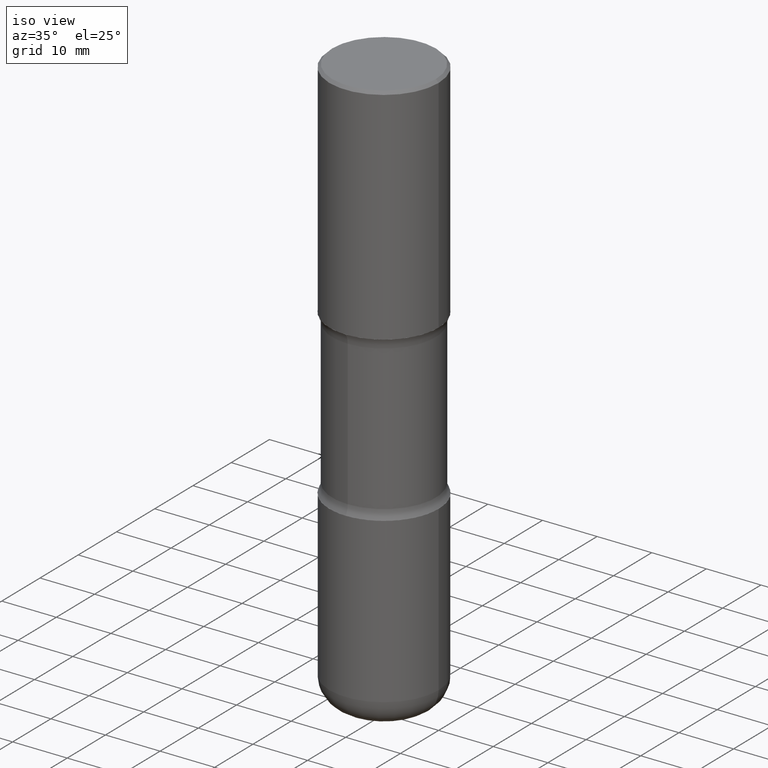
[diagram: clean part render]
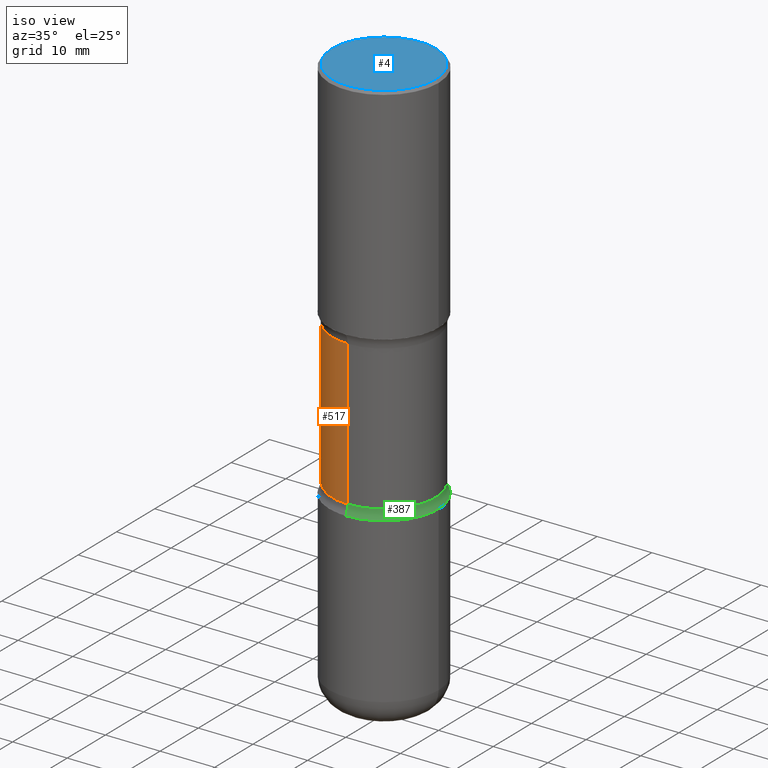
[diagram: same view with three faces highlighted in distinct colors, each labeled with its STEP entity id]
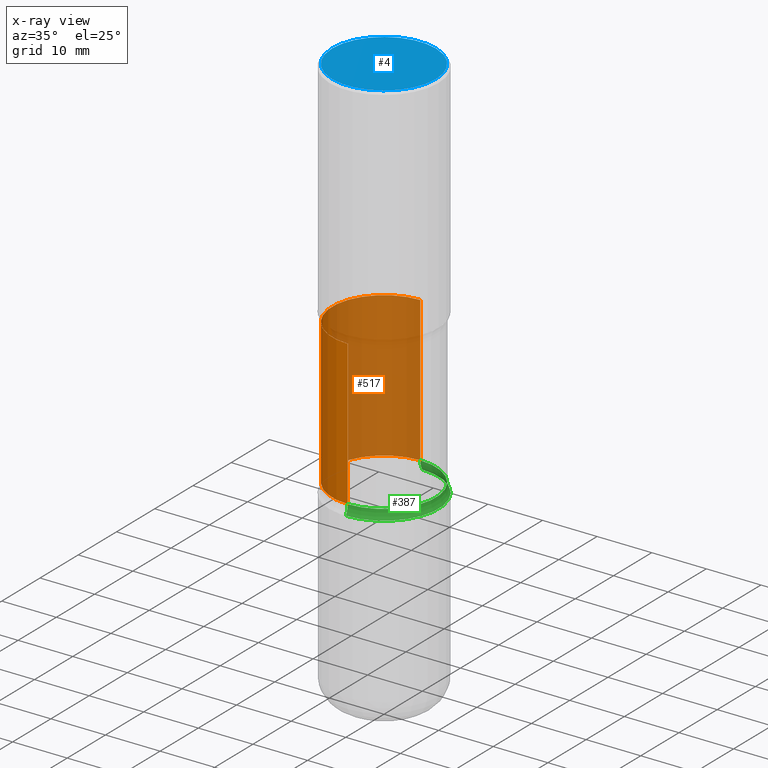
[diagram: x-ray of the same camera — body ghosted, the three highlighted faces saturated]
A machine part, iso view with three faces highlighted in distinct colors.
The next image is the same camera in x-ray (body ghosted, the three faces saturated) — at least one of them is partly hidden behind the body in this view.
Their STEP definitions:

[orange] entity #517 — the highlighted cylindrical surface (partial cylindrical patch) has radius 9.4869 mm, axis along (0, -0, -1).
#16 = AXIS2_PLACEMENT_3D ( 'NONE', #340, #427, #518 ) ;
#29 = DIRECTION ( 'NONE',  ( 2.497382066111305685E-29, -3.417138595909611452E-15, -1.000000000000000000 ) ) ;
#33 = CIRCLE ( 'NONE', #103, 0.3735000000000001097 ) ;
#44 = CARTESIAN_POINT ( 'NONE',  ( 2.608136560115861621E-15, 0.3734999999999941700, -1.682231930840100809 ) ) ;
#51 = EDGE_CURVE ( 'NONE', #555, #93, #33, .T. ) ;
#66 = LINE ( 'NONE', #378, #390 ) ;
#69 = DIRECTION ( 'NONE',  ( 6.982962677686265922E-15, 1.000000000000000000, -3.657092360996335267E-15 ) ) ;
#90 = EDGE_CURVE ( 'NONE', #93, #111, #372, .T. ) ;
#93 = VERTEX_POINT ( 'NONE', #44 ) ;
#103 = AXIS2_PLACEMENT_3D ( 'NONE', #171, #334, #69 ) ;
#105 = VECTOR ( 'NONE', #389, 39.37007874015748143 ) ;
#110 = CARTESIAN_POINT ( 'NONE',  ( -2.631687031945092476E-15, -0.3735000000000094911, -2.727068069159900521 ) ) ;
#111 = VERTEX_POINT ( 'NONE', #294 ) ;
#113 = EDGE_CURVE ( 'NONE', #277, #111, #428, .T. ) ;
#120 = EDGE_LOOP ( 'NONE', ( #412, #231, #425, #144 ) ) ;
#125 = CARTESIAN_POINT ( 'NONE',  ( 1.027696689415007474E-28, -1.446820562349780459E-14, -4.173200000000000465 ) ) ;
#144 = ORIENTED_EDGE ( 'NONE', *, *, #113, .F. ) ;
#168 = FACE_OUTER_BOUND ( 'NONE', #120, .T. ) ;
#171 = CARTESIAN_POINT ( 'NONE',  ( 4.056067910974230799E-29, -5.956222493193065901E-15, -1.682231930840099476 ) ) ;
#205 = DIRECTION ( 'NONE',  ( 2.497382066111305685E-29, -3.417138595909611452E-15, -1.000000000000000000 ) ) ;
#218 = CARTESIAN_POINT ( 'NONE',  ( 2.608136560115922758E-15, 0.3734999999999855103, -4.173200000000001353 ) ) ;
#231 = ORIENTED_EDGE ( 'NONE', *, *, #51, .T. ) ;
#238 = CYLINDRICAL_SURFACE ( 'NONE', #493, 0.3734999999999999987 ) ;
#277 = VERTEX_POINT ( 'NONE', #110 ) ;
#284 = CARTESIAN_POINT ( 'NONE',  ( -2.631687031945121663E-15, -0.3735000000000060494, -1.682231930840098144 ) ) ;
#294 = CARTESIAN_POINT ( 'NONE',  ( 2.608136560115886471E-15, 0.3734999999999905063, -2.727068069159902741 ) ) ;
#334 = DIRECTION ( 'NONE',  ( 2.497382066111305685E-29, -3.417138595909611452E-15, -1.000000000000000000 ) ) ;
#340 = CARTESIAN_POINT ( 'NONE',  ( 6.665422944839096374E-29, -9.526572387846816848E-15, -2.727068069159901409 ) ) ;
#372 = LINE ( 'NONE', #218, #105 ) ;
#378 = CARTESIAN_POINT ( 'NONE',  ( -2.562396002167563676E-15, -0.3735000000000144871, -4.173199999999998688 ) ) ;
#389 = DIRECTION ( 'NONE',  ( 2.497382066111305685E-29, -3.417138595909611452E-15, -1.000000000000000000 ) ) ;
#390 = VECTOR ( 'NONE', #205, 39.37007874015748143 ) ;
#408 = DIRECTION ( 'NONE',  ( 6.982962677686265922E-15, 1.000000000000000000, -2.925673888797068924E-15 ) ) ;
#412 = ORIENTED_EDGE ( 'NONE', *, *, #445, .F. ) ;
#425 = ORIENTED_EDGE ( 'NONE', *, *, #90, .T. ) ;
#427 = DIRECTION ( 'NONE',  ( 2.497382066111305685E-29, -3.417138595909611452E-15, -1.000000000000000000 ) ) ;
#428 = CIRCLE ( 'NONE', #16, 0.3734999999999999987 ) ;
#445 = EDGE_CURVE ( 'NONE', #555, #277, #66, .T. ) ;
#493 = AXIS2_PLACEMENT_3D ( 'NONE', #125, #29, #408 ) ;
#517 = ADVANCED_FACE ( 'NONE', ( #168 ), #238, .T. ) ;
#518 = DIRECTION ( 'NONE',  ( 6.982962677686265922E-15, 1.000000000000000000, -2.925673888797068924E-15 ) ) ;
#555 = VERTEX_POINT ( 'NONE', #284 ) ;

[blue] entity #4 — the highlighted planar face has unit normal (0, -0, -1).
#4 = ADVANCED_FACE ( 'NONE', ( #287 ), #169, .F. ) ;
#37 = CARTESIAN_POINT ( 'NONE',  ( 2.609533152651358987E-15, 0.3737000000000002542, -1.298363807590533784E-15 ) ) ;
#101 = CARTESIAN_POINT ( 'NONE',  ( 0.3737000000000002542, -2.667287895133369937E-15, 1.280553747031968579E-17 ) ) ;
#116 = ORIENTED_EDGE ( 'NONE', *, *, #158, .T. ) ;
#136 = DIRECTION ( 'NONE',  ( -2.445468806185136597E-29, 3.491481338843145583E-15, 1.000000000000000000 ) ) ;
#158 = EDGE_CURVE ( 'NONE', #406, #187, #341, .T. ) ;
#169 = PLANE ( 'NONE',  #296 ) ;
#185 = CARTESIAN_POINT ( 'NONE',  ( -3.131554243005659264E-46, 4.471029511141341874E-32, 1.280553747030123384E-17 ) ) ;
#187 = VERTEX_POINT ( 'NONE', #388 ) ;
#202 = DIRECTION ( 'NONE',  ( -1.000000000000000000, 6.982962677686265922E-15, -4.876176775795935793E-29 ) ) ;
#206 = ORIENTED_EDGE ( 'NONE', *, *, #311, .T. ) ;
#259 = DIRECTION ( 'NONE',  ( 1.000000000000000000, -6.982962677686266711E-15, 4.876212485538972316E-29 ) ) ;
#287 = FACE_OUTER_BOUND ( 'NONE', #307, .T. ) ;
#296 = AXIS2_PLACEMENT_3D ( 'NONE', #37, #472, #202 ) ;
#306 = DIRECTION ( 'NONE',  ( -2.445468806185136597E-29, 3.491481338843145583E-15, 1.000000000000000000 ) ) ;
#307 = EDGE_LOOP ( 'NONE', ( #206, #116 ) ) ;
#311 = EDGE_CURVE ( 'NONE', #187, #406, #550, .T. ) ;
#341 = CIRCLE ( 'NONE', #419, 0.3737000000000002542 ) ;
#352 = AXIS2_PLACEMENT_3D ( 'NONE', #185, #306, #356 ) ;
#356 = DIRECTION ( 'NONE',  ( 1.000000000000000000, -6.982962677686266711E-15, 4.876212485538972316E-29 ) ) ;
#388 = CARTESIAN_POINT ( 'NONE',  ( -0.3737000000000002542, 2.644447966039791030E-15, 1.280553747028286201E-17 ) ) ;
#406 = VERTEX_POINT ( 'NONE', #101 ) ;
#419 = AXIS2_PLACEMENT_3D ( 'NONE', #481, #136, #259 ) ;
#472 = DIRECTION ( 'NONE',  ( 2.438088387897960049E-29, -3.491481338843145188E-15, -1.000000000000000000 ) ) ;
#481 = CARTESIAN_POINT ( 'NONE',  ( -3.131554243005659264E-46, 4.471029511141341874E-32, 1.280553747030123384E-17 ) ) ;
#550 = CIRCLE ( 'NONE', #352, 0.3737000000000002542 ) ;

[green] entity #387 — the highlighted toroidal blend (fillet) surface has major radius 12.6619 mm and minor (blend) radius 3.175 mm.
#8 = DIRECTION ( 'NONE',  ( 6.982962677686265922E-15, 1.000000000000000000, -2.775563112689115117E-15 ) ) ;
#21 = DIRECTION ( 'NONE',  ( 1.000000000000000000, -6.860497997771530774E-15, 4.841709315645876741E-29 ) ) ;
#38 = EDGE_CURVE ( 'NONE', #111, #277, #447, .T. ) ;
#42 = AXIS2_PLACEMENT_3D ( 'NONE', #166, #418, #325 ) ;
#71 = EDGE_LOOP ( 'NONE', ( #508, #124, #541, #489 ) ) ;
#73 = CARTESIAN_POINT ( 'NONE',  ( 2.749192406205152242E-15, 0.3936999999999903910, -2.795200000000001239 ) ) ;
#77 = CIRCLE ( 'NONE', #42, 0.1249999999999999584 ) ;
#91 = CARTESIAN_POINT ( 'NONE',  ( 6.835574407048695164E-29, -9.759388638334361670E-15, -2.795200000000000351 ) ) ;
#110 = CARTESIAN_POINT ( 'NONE',  ( -2.631687031945092476E-15, -0.3735000000000094911, -2.727068069159900521 ) ) ;
#111 = VERTEX_POINT ( 'NONE', #294 ) ;
#124 = ORIENTED_EDGE ( 'NONE', *, *, #132, .F. ) ;
#130 = CARTESIAN_POINT ( 'NONE',  ( -2.700978061722584594E-15, -0.3937000000000099309, -2.795199999999999019 ) ) ;
#132 = EDGE_CURVE ( 'NONE', #491, #252, #292, .T. ) ;
#141 = DIRECTION ( 'NONE',  ( 2.497382066111305685E-29, -3.417138595909611452E-15, -1.000000000000000000 ) ) ;
#148 = FACE_OUTER_BOUND ( 'NONE', #71, .T. ) ;
#166 = CARTESIAN_POINT ( 'NONE',  ( 3.481006894826670204E-15, 0.4984999999999905063, -2.727068069159903185 ) ) ;
#227 = DIRECTION ( 'NONE',  ( 6.982962677686265922E-15, 1.000000000000000000, -3.417138595909611452E-15 ) ) ;
#249 = AXIS2_PLACEMENT_3D ( 'NONE', #267, #141, #227 ) ;
#252 = VERTEX_POINT ( 'NONE', #130 ) ;
#267 = CARTESIAN_POINT ( 'NONE',  ( 6.621268914021895076E-29, -9.589803473068410880E-15, -2.727068069159901409 ) ) ;
#273 = TOROIDAL_SURFACE ( 'NONE', #249, 0.4985000000000001097, 0.1249999999999999861 ) ;
#277 = VERTEX_POINT ( 'NONE', #110 ) ;
#292 = CIRCLE ( 'NONE', #492, 0.3937000000000002164 ) ;
#294 = CARTESIAN_POINT ( 'NONE',  ( 2.608136560115886471E-15, 0.3734999999999905063, -2.727068069159902741 ) ) ;
#325 = DIRECTION ( 'NONE',  ( -6.982962677686265133E-15, -1.000000000000000000, 0.000000000000000000 ) ) ;
#345 = DIRECTION ( 'NONE',  ( 2.497382066111305685E-29, -3.417138595909611452E-15, -1.000000000000000000 ) ) ;
#358 = EDGE_CURVE ( 'NONE', #252, #277, #448, .T. ) ;
#387 = ADVANCED_FACE ( 'NONE', ( #148 ), #273, .F. ) ;
#416 = DIRECTION ( 'NONE',  ( 2.497382066111305685E-29, -3.417138595909611452E-15, -1.000000000000000000 ) ) ;
#418 = DIRECTION ( 'NONE',  ( -1.000000000000000000, 6.982962677686265922E-15, -4.883557194083112340E-29 ) ) ;
#434 = EDGE_CURVE ( 'NONE', #491, #111, #77, .T. ) ;
#447 = CIRCLE ( 'NONE', #519, 0.3734999999999999987 ) ;
#448 = CIRCLE ( 'NONE', #520, 0.1249999999999999584 ) ;
#451 = DIRECTION ( 'NONE',  ( 6.860497997771532351E-15, 1.000000000000000000, 0.000000000000000000 ) ) ;
#464 = DIRECTION ( 'NONE',  ( 6.982962677686265922E-15, 1.000000000000000000, -2.925673888797068924E-15 ) ) ;
#488 = CARTESIAN_POINT ( 'NONE',  ( -3.419958251889042592E-15, -0.4985000000000096576, -2.727068069159899633 ) ) ;
#489 = ORIENTED_EDGE ( 'NONE', *, *, #38, .T. ) ;
#491 = VERTEX_POINT ( 'NONE', #73 ) ;
#492 = AXIS2_PLACEMENT_3D ( 'NONE', #91, #345, #8 ) ;
#500 = CARTESIAN_POINT ( 'NONE',  ( 6.665422944839096374E-29, -9.526572387846816848E-15, -2.727068069159901409 ) ) ;
#508 = ORIENTED_EDGE ( 'NONE', *, *, #358, .F. ) ;
#519 = AXIS2_PLACEMENT_3D ( 'NONE', #500, #416, #464 ) ;
#520 = AXIS2_PLACEMENT_3D ( 'NONE', #488, #21, #451 ) ;
#541 = ORIENTED_EDGE ( 'NONE', *, *, #434, .T. ) ;